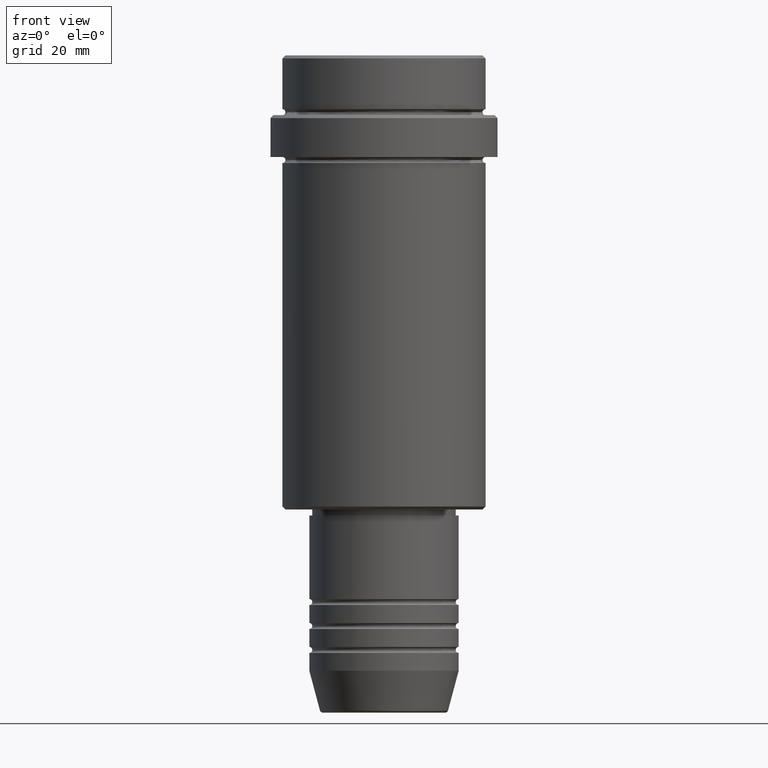
[diagram: clean part render]
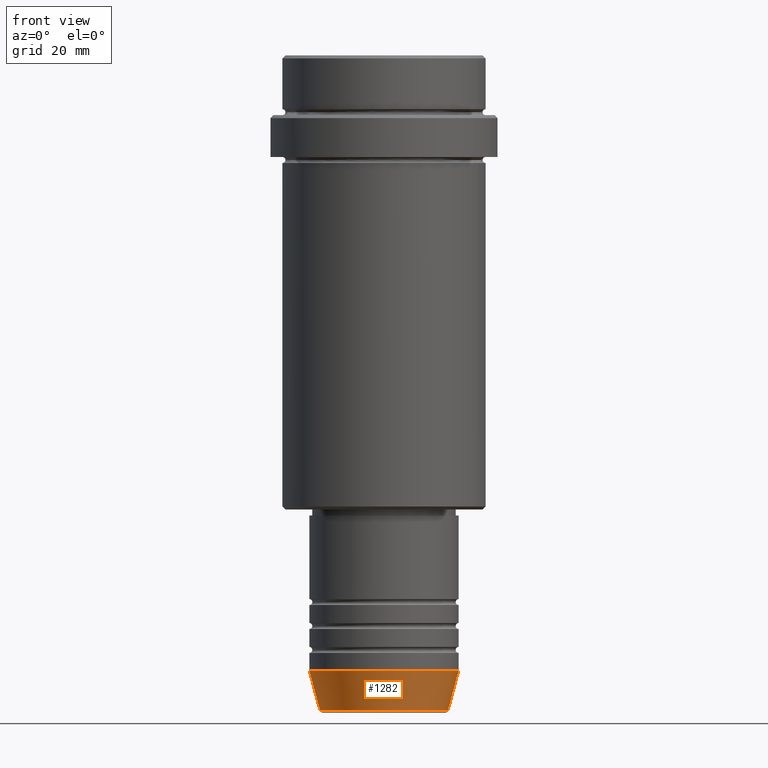
[diagram: same view with one face highlighted and labeled with its STEP entity id]
A machine part, front view. The second image highlights one B-rep face of the part: STEP entity #1282.
In plain terms, the highlighted conical surface has half-angle 15 deg.
Its self-contained STEP definition (entity closure, byte-faithful):
#27 = CARTESIAN_POINT ( 'NONE',  ( -12.50000000000000000, 1.530808498934191521E-15, -103.0000000000000142 ) ) ;
#28 = CARTESIAN_POINT ( 'NONE',  ( 10.72365507213718416, 0.000000000000000000, -109.6294095225512706 ) ) ;
#36 = EDGE_LOOP ( 'NONE', ( #800, #317, #1206, #1383 ) ) ;
#48 = CARTESIAN_POINT ( 'NONE',  ( -12.50000000000000000, 1.530808498934191521E-15, -103.0000000000000142 ) ) ;
#76 = CARTESIAN_POINT ( 'NONE',  ( 0.000000000000000000, 0.000000000000000000, -103.0000000000000142 ) ) ;
#99 = DIRECTION ( 'NONE',  ( -0.000000000000000000, -0.000000000000000000, 1.000000000000000000 ) ) ;
#100 = EDGE_CURVE ( 'NONE', #961, #892, #763, .T. ) ;
#135 = DIRECTION ( 'NONE',  ( -0.2588190451025213501, 3.169619151431772337E-17, 0.9659258262890680902 ) ) ;
#272 = CARTESIAN_POINT ( 'NONE',  ( 0.000000000000000000, 0.000000000000000000, -103.0000000000000142 ) ) ;
#277 = EDGE_CURVE ( 'NONE', #672, #1343, #1278, .T. ) ;
#291 = CARTESIAN_POINT ( 'NONE',  ( 12.50000000000000000, 0.000000000000000000, -103.0000000000000142 ) ) ;
#308 = CIRCLE ( 'NONE', #443, 12.50000000000000000 ) ;
#317 = ORIENTED_EDGE ( 'NONE', *, *, #1219, .T. ) ;
#391 = DIRECTION ( 'NONE',  ( -0.000000000000000000, -0.000000000000000000, 1.000000000000000000 ) ) ;
#407 = CARTESIAN_POINT ( 'NONE',  ( 12.50000000000000000, 0.000000000000000000, -103.0000000000000142 ) ) ;
#411 = DIRECTION ( 'NONE',  ( 0.2588190451025213501, 0.000000000000000000, 0.9659258262890680902 ) ) ;
#443 = AXIS2_PLACEMENT_3D ( 'NONE', #76, #1268, #1391 ) ;
#498 = DIRECTION ( 'NONE',  ( 1.000000000000000000, 0.000000000000000000, 0.000000000000000000 ) ) ;
#596 = FACE_OUTER_BOUND ( 'NONE', #36, .T. ) ;
#654 = CONICAL_SURFACE ( 'NONE', #831, 12.50000000000000000, 0.2617993877991500740 ) ;
#672 = VERTEX_POINT ( 'NONE', #28 ) ;
#763 = LINE ( 'NONE', #27, #1104 ) ;
#800 = ORIENTED_EDGE ( 'NONE', *, *, #100, .F. ) ;
#831 = AXIS2_PLACEMENT_3D ( 'NONE', #272, #391, #498 ) ;
#875 = CARTESIAN_POINT ( 'NONE',  ( 0.000000000000000000, 0.000000000000000000, -109.6294095225512706 ) ) ;
#892 = VERTEX_POINT ( 'NONE', #48 ) ;
#961 = VERTEX_POINT ( 'NONE', #1411 ) ;
#1104 = VECTOR ( 'NONE', #135, 1000.000000000000000 ) ;
#1200 = VECTOR ( 'NONE', #411, 1000.000000000000000 ) ;
#1206 = ORIENTED_EDGE ( 'NONE', *, *, #277, .T. ) ;
#1219 = EDGE_CURVE ( 'NONE', #961, #672, #1234, .T. ) ;
#1234 = CIRCLE ( 'NONE', #1357, 10.72365507213718416 ) ;
#1268 = DIRECTION ( 'NONE',  ( -0.000000000000000000, -0.000000000000000000, 1.000000000000000000 ) ) ;
#1272 = EDGE_CURVE ( 'NONE', #892, #1343, #308, .T. ) ;
#1278 = LINE ( 'NONE', #407, #1200 ) ;
#1282 = ADVANCED_FACE ( 'NONE', ( #596 ), #654, .T. ) ;
#1326 = DIRECTION ( 'NONE',  ( 1.000000000000000000, 0.000000000000000000, 0.000000000000000000 ) ) ;
#1343 = VERTEX_POINT ( 'NONE', #291 ) ;
#1357 = AXIS2_PLACEMENT_3D ( 'NONE', #875, #99, #1326 ) ;
#1383 = ORIENTED_EDGE ( 'NONE', *, *, #1272, .F. ) ;
#1391 = DIRECTION ( 'NONE',  ( 1.000000000000000000, 0.000000000000000000, 0.000000000000000000 ) ) ;
#1411 = CARTESIAN_POINT ( 'NONE',  ( -10.72365507213718416, 1.422038742429749727E-15, -109.6294095225512706 ) ) ;